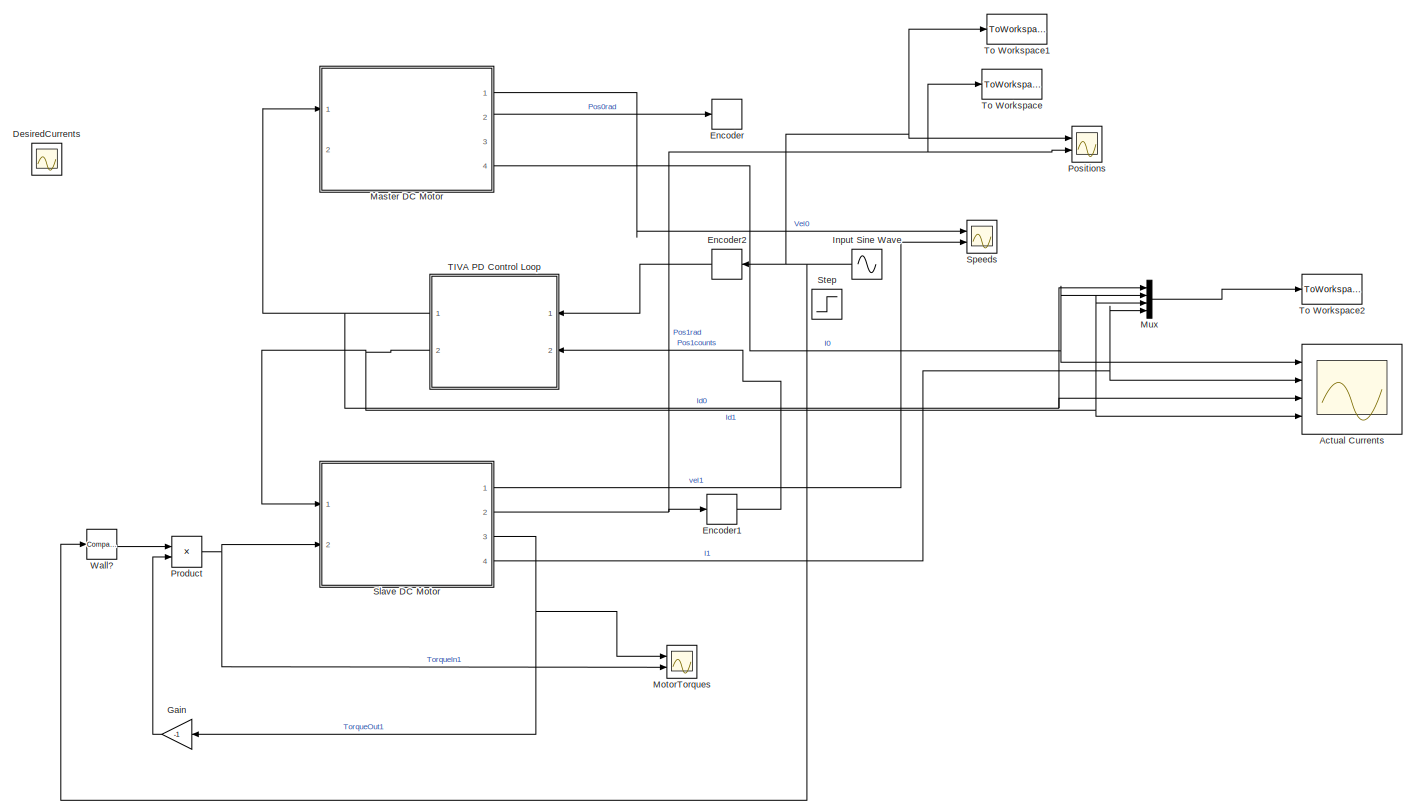
[diagram: root canvas - part 1/1, most of the canvas]
MODEL slx_b3f14bf9bebd
KIND model
CONFIG AbsTol = auto
CONFIG EnableMultiTasking = off
CONFIG FixedStep = 0.00001
CONFIG MaxStep = auto
CONFIG MinStep = auto
CONFIG RelTol = 1e-3
CONFIG SampleTimeConstraint = Unconstrained
CONFIG Solver = VariableStepAuto
CONFIG SolverName = VariableStepAuto
CONFIG StartTime = 0.0
CONFIG StopTime = 10
BLOCK [Scope] Actual Currents
  NumInputPorts = 4
  Ports = [4]
  ScopeSpecificationString = Simulink.scopes.TimeScopeBlockCfg('CurrentConfiguration', extmgr.ConfigurationSet(extmgr.Configuration('Core','General UI',true),extmgr.Configuration('Core','Source UI',true),extmgr.Configuration('Sources','WiredSimulink',true,'DataLoggingVariableName','ScopeData2'),extmgr.Configuration('Visuals','Time Domain',true,'SerializedDisplays',{struct('MinYLimReal','-1.7497','MaxYLimReal','1.3431','YLabel...<+1403ch>
BLOCK [Scope] DesiredCurrents
  NumInputPorts = 1
  Ports = [1]
  ScopeSpecificationString = Simulink.scopes.TimeScopeBlockCfg('CurrentConfiguration', extmgr.ConfigurationSet(extmgr.Configuration('Core','General UI',true),extmgr.Configuration('Core','Source UI',true),extmgr.Configuration('Sources','WiredSimulink',true,'DataLoggingVariableName','ScopeData3'),extmgr.Configuration('Visuals','Time Domain',true),extmgr.Configuration('Tools','Plot Navigation',true),extmgr.Configuration('Tools',...<+40ch>
BLOCK [Quantizer] Encoder
  QuantizationInterval = (2*pi)/8192
BLOCK [Quantizer] Encoder1
  QuantizationInterval = (2*pi)/8192
BLOCK [Quantizer] Encoder2
  QuantizationInterval = (2*pi)/8192
BLOCK [Gain] Gain
  Gain = -1
  OutDataTypeStr = Inherit: Inherit via internal rule
  ParamDataTypeStr = Inherit: Inherit via internal rule
  SaturateOnIntegerOverflow = off
BLOCK [Sin] Input Sine Wave
  Ports = [0, 1]
  SampleTime = 0
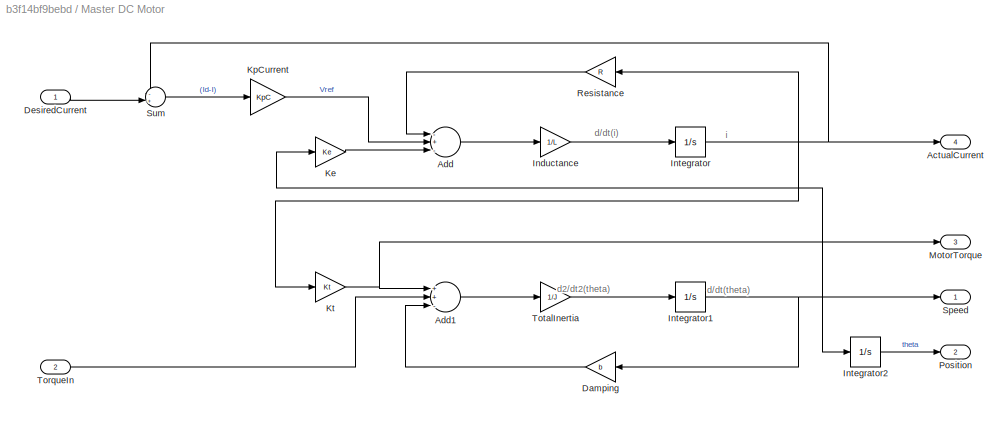
BLOCK [SubSystem] Master DC Motor
  Ports = [2, 4]
  RequestExecContextInheritance = off
  Variant = off
BLOCK [Outport] Master DC Motor/ActualCurrent
  IconDisplay = Port number
  Port = 4
BLOCK [Sum] Master DC Motor/Add
  InputSameDT = off
  Inputs = -+-
  OutDataTypeStr = Inherit: Inherit via internal rule
  Ports = [3, 1]
  SaturateOnIntegerOverflow = off
BLOCK [Sum] Master DC Motor/Add1
  InputSameDT = off
  Inputs = ++-
  OutDataTypeStr = Inherit: Inherit via internal rule
  Ports = [3, 1]
  SaturateOnIntegerOverflow = off
BLOCK [Gain] Master DC Motor/Damping
  Gain = b
  OutDataTypeStr = Inherit: Inherit via internal rule
  ParamDataTypeStr = Inherit: Inherit via internal rule
  SaturateOnIntegerOverflow = off
BLOCK [Inport] Master DC Motor/DesiredCurrent
  IconDisplay = Port number
BLOCK [Gain] Master DC Motor/Inductance
  Gain = 1/L
  OutDataTypeStr = Inherit: Inherit via internal rule
  ParamDataTypeStr = Inherit: Inherit via internal rule
  SaturateOnIntegerOverflow = off
BLOCK [Integrator] Master DC Motor/Integrator
  Ports = [1, 1]
BLOCK [Integrator] Master DC Motor/Integrator1
  Ports = [1, 1]
BLOCK [Integrator] Master DC Motor/Integrator2
  Ports = [1, 1]
BLOCK [Gain] Master DC Motor/Ke
  Gain = Ke
  OutDataTypeStr = Inherit: Inherit via internal rule
  ParamDataTypeStr = Inherit: Inherit via internal rule
  SaturateOnIntegerOverflow = off
BLOCK [Gain] Master DC Motor/KpCurrent
  Gain = KpC
  OutDataTypeStr = Inherit: Inherit via internal rule
  ParamDataTypeStr = Inherit: Inherit via internal rule
  SaturateOnIntegerOverflow = off
BLOCK [Gain] Master DC Motor/Kt
  Gain = Kt
  OutDataTypeStr = Inherit: Inherit via internal rule
  ParamDataTypeStr = Inherit: Inherit via internal rule
  SaturateOnIntegerOverflow = off
BLOCK [Outport] Master DC Motor/MotorTorque
  IconDisplay = Port number
  Port = 3
BLOCK [Outport] Master DC Motor/Position
  IconDisplay = Port number
  Port = 2
BLOCK [Gain] Master DC Motor/Resistance
  Gain = R
  OutDataTypeStr = Inherit: Inherit via internal rule
  ParamDataTypeStr = Inherit: Inherit via internal rule
  SaturateOnIntegerOverflow = off
BLOCK [Outport] Master DC Motor/Speed
  IconDisplay = Port number
BLOCK [Sum] Master DC Motor/Sum
  IconShape = round
  InputSameDT = off
  Inputs = -+|
  OutDataTypeStr = Inherit: Inherit via internal rule
  Ports = [2, 1]
  SaturateOnIntegerOverflow = off
BLOCK [Inport] Master DC Motor/TorqueIn
  IconDisplay = Port number
  Port = 2
BLOCK [Gain] Master DC Motor/TotalInertia
  Gain = 1/J
  OutDataTypeStr = Inherit: Inherit via internal rule
  ParamDataTypeStr = Inherit: Inherit via internal rule
  SaturateOnIntegerOverflow = off
BLOCK [Scope] MotorTorques
  NumInputPorts = 2
  Ports = [2]
  ScopeSpecificationString = Simulink.scopes.TimeScopeBlockCfg('CurrentConfiguration', extmgr.ConfigurationSet(extmgr.Configuration('Core','General UI',true),extmgr.Configuration('Core','Source UI',true),extmgr.Configuration('Sources','WiredSimulink',true,'DataLoggingVariableName','ScopeData4'),extmgr.Configuration('Visuals','Time Domain',true,'SerializedDisplays',{struct('MinYLimReal','-0.02503','MaxYLimReal','0.02507','YLab...<+1412ch>
BLOCK [Mux] Mux
  DisplayOption = bar
  Ports = [4, 1]
BLOCK [Scope] Positions
  NumInputPorts = 2
  Ports = [2]
  ScopeSpecificationString = Simulink.scopes.TimeScopeBlockCfg('CurrentConfiguration', extmgr.ConfigurationSet(extmgr.Configuration('Core','General UI',true),extmgr.Configuration('Core','Source UI',true),extmgr.Configuration('Sources','WiredSimulink',true),extmgr.Configuration('Visuals','Time Domain',true,'SerializedDisplays',{struct('MinYLimReal','-5.22724','MaxYLimReal','6.17646','YLabelReal','','MinYLimMag','0.00000','MaxY...<+1375ch>
BLOCK [Product] Product
  InputSameDT = off
  OutDataTypeStr = Inherit: Inherit via internal rule
  Ports = [2, 1]
  RndMeth = Floor
  SaturateOnIntegerOverflow = off
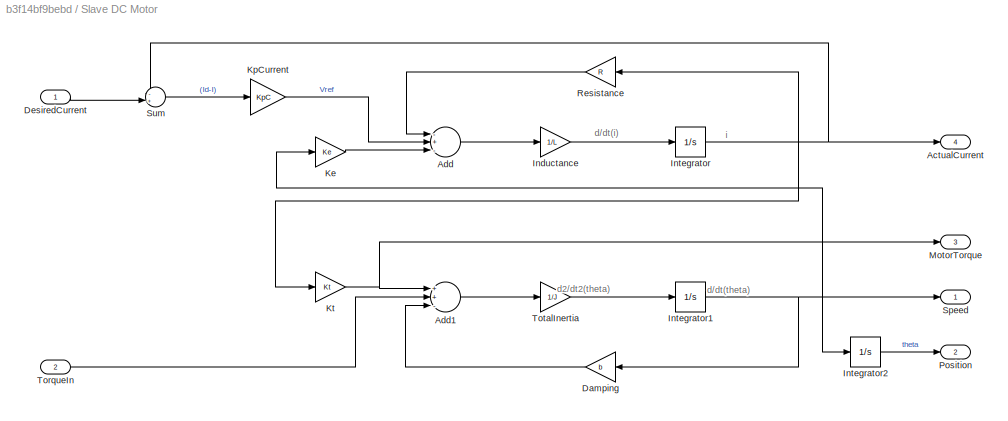
BLOCK [SubSystem] Slave DC Motor
  Ports = [2, 4]
  RequestExecContextInheritance = off
  Variant = off
BLOCK [Outport] Slave DC Motor/ActualCurrent
  IconDisplay = Port number
  Port = 4
BLOCK [Sum] Slave DC Motor/Add
  InputSameDT = off
  Inputs = -+-
  OutDataTypeStr = Inherit: Inherit via internal rule
  Ports = [3, 1]
  SaturateOnIntegerOverflow = off
BLOCK [Sum] Slave DC Motor/Add1
  InputSameDT = off
  Inputs = ++-
  OutDataTypeStr = Inherit: Inherit via internal rule
  Ports = [3, 1]
  SaturateOnIntegerOverflow = off
BLOCK [Gain] Slave DC Motor/Damping
  Gain = b
  OutDataTypeStr = Inherit: Inherit via internal rule
  ParamDataTypeStr = Inherit: Inherit via internal rule
  SaturateOnIntegerOverflow = off
BLOCK [Inport] Slave DC Motor/DesiredCurrent
  IconDisplay = Port number
BLOCK [Gain] Slave DC Motor/Inductance
  Gain = 1/L
  OutDataTypeStr = Inherit: Inherit via internal rule
  ParamDataTypeStr = Inherit: Inherit via internal rule
  SaturateOnIntegerOverflow = off
BLOCK [Integrator] Slave DC Motor/Integrator
  Ports = [1, 1]
BLOCK [Integrator] Slave DC Motor/Integrator1
  Ports = [1, 1]
BLOCK [Integrator] Slave DC Motor/Integrator2
  Ports = [1, 1]
BLOCK [Gain] Slave DC Motor/Ke
  Gain = Ke
  OutDataTypeStr = Inherit: Inherit via internal rule
  ParamDataTypeStr = Inherit: Inherit via internal rule
  SaturateOnIntegerOverflow = off
BLOCK [Gain] Slave DC Motor/KpCurrent
  Gain = KpC
  OutDataTypeStr = Inherit: Inherit via internal rule
  ParamDataTypeStr = Inherit: Inherit via internal rule
  SaturateOnIntegerOverflow = off
BLOCK [Gain] Slave DC Motor/Kt
  Gain = Kt
  OutDataTypeStr = Inherit: Inherit via internal rule
  ParamDataTypeStr = Inherit: Inherit via internal rule
  SaturateOnIntegerOverflow = off
BLOCK [Outport] Slave DC Motor/MotorTorque
  IconDisplay = Port number
  Port = 3
BLOCK [Outport] Slave DC Motor/Position
  IconDisplay = Port number
  Port = 2
BLOCK [Gain] Slave DC Motor/Resistance
  Gain = R
  OutDataTypeStr = Inherit: Inherit via internal rule
  ParamDataTypeStr = Inherit: Inherit via internal rule
  SaturateOnIntegerOverflow = off
BLOCK [Outport] Slave DC Motor/Speed
  IconDisplay = Port number
BLOCK [Sum] Slave DC Motor/Sum
  IconShape = round
  InputSameDT = off
  Inputs = -+|
  OutDataTypeStr = Inherit: Inherit via internal rule
  Ports = [2, 1]
  SaturateOnIntegerOverflow = off
BLOCK [Inport] Slave DC Motor/TorqueIn
  IconDisplay = Port number
  Port = 2
BLOCK [Gain] Slave DC Motor/TotalInertia
  Gain = 1/J
  OutDataTypeStr = Inherit: Inherit via internal rule
  ParamDataTypeStr = Inherit: Inherit via internal rule
  SaturateOnIntegerOverflow = off
BLOCK [Scope] Speeds
  NumInputPorts = 2
  Ports = [2]
  ScopeSpecificationString = Simulink.scopes.TimeScopeBlockCfg('CurrentConfiguration', extmgr.ConfigurationSet(extmgr.Configuration('Core','General UI',true),extmgr.Configuration('Core','Source UI',true),extmgr.Configuration('Sources','WiredSimulink',true,'DataLoggingVariableName','ScopeData1'),extmgr.Configuration('Visuals','Time Domain',true,'SerializedDisplays',{struct('MinYLimReal','-251.91405','MaxYLimReal','1323.66231',...<+1419ch>
BLOCK [Step] Step
  SampleTime = 0
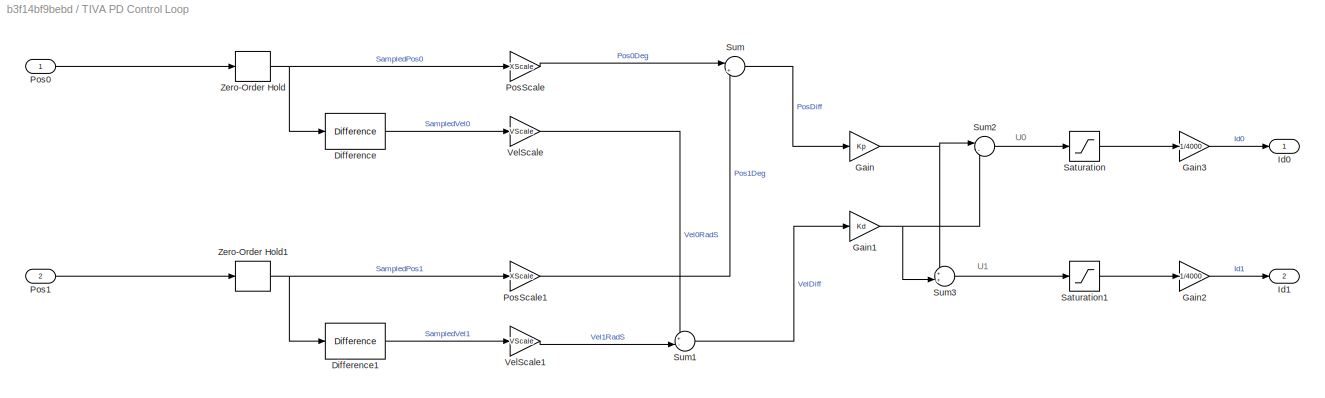
BLOCK [SubSystem] TIVA PD Control Loop
  Ports = [2, 2]
  RequestExecContextInheritance = off
  Variant = off
BLOCK [Reference] TIVA PD Control Loop/Difference  REF=simulink/Discrete/Difference
  Ports = [1, 1]
  SourceBlock = simulink/Discrete/Difference
  SourceProductBaseCode = SL
  SourceProductName = Simulink
  SourceType = Difference
BLOCK [Reference] TIVA PD Control Loop/Difference1  REF=simulink/Discrete/Difference
  Ports = [1, 1]
  SourceBlock = simulink/Discrete/Difference
  SourceProductBaseCode = SL
  SourceProductName = Simulink
  SourceType = Difference
BLOCK [Gain] TIVA PD Control Loop/Gain
  Gain = Kp
  OutDataTypeStr = Inherit: Inherit via internal rule
  ParamDataTypeStr = Inherit: Inherit via internal rule
  SaturateOnIntegerOverflow = off
BLOCK [Gain] TIVA PD Control Loop/Gain1
  Gain = Kd
  OutDataTypeStr = Inherit: Inherit via internal rule
  ParamDataTypeStr = Inherit: Inherit via internal rule
  SaturateOnIntegerOverflow = off
BLOCK [Gain] TIVA PD Control Loop/Gain2
  Gain = 1/4000
  OutDataTypeStr = Inherit: Inherit via internal rule
  ParamDataTypeStr = Inherit: Inherit via internal rule
  SaturateOnIntegerOverflow = off
BLOCK [Gain] TIVA PD Control Loop/Gain3
  Gain = 1/4000
  OutDataTypeStr = Inherit: Inherit via internal rule
  ParamDataTypeStr = Inherit: Inherit via internal rule
  SaturateOnIntegerOverflow = off
BLOCK [Outport] TIVA PD Control Loop/Id0
  IconDisplay = Port number
BLOCK [Outport] TIVA PD Control Loop/Id1
  IconDisplay = Port number
  Port = 2
BLOCK [Inport] TIVA PD Control Loop/Pos0
  IconDisplay = Port number
BLOCK [Inport] TIVA PD Control Loop/Pos1
  IconDisplay = Port number
  Port = 2
BLOCK [Gain] TIVA PD Control Loop/PosScale
  Gain = XScale
  OutDataTypeStr = Inherit: Inherit via internal rule
  ParamDataTypeStr = Inherit: Inherit via internal rule
  SaturateOnIntegerOverflow = off
BLOCK [Gain] TIVA PD Control Loop/PosScale1
  Gain = XScale
  OutDataTypeStr = Inherit: Inherit via internal rule
  ParamDataTypeStr = Inherit: Inherit via internal rule
  SaturateOnIntegerOverflow = off
BLOCK [Saturate] TIVA PD Control Loop/Saturation
  InputPortMap = u0
  LowerLimit = -4000
  Ports = [1, 1]
  UpperLimit = 4000
BLOCK [Saturate] TIVA PD Control Loop/Saturation1
  InputPortMap = u0
  LowerLimit = -4000
  Ports = [1, 1]
  UpperLimit = 4000
BLOCK [Sum] TIVA PD Control Loop/Sum
  IconShape = round
  InputSameDT = off
  Inputs = |+-
  OutDataTypeStr = Inherit: Inherit via internal rule
  Ports = [2, 1]
  SaturateOnIntegerOverflow = off
BLOCK [Sum] TIVA PD Control Loop/Sum1
  IconShape = round
  InputSameDT = off
  Inputs = +-|
  OutDataTypeStr = Inherit: Inherit via internal rule
  Ports = [2, 1]
  SaturateOnIntegerOverflow = off
BLOCK [Sum] TIVA PD Control Loop/Sum2
  IconShape = round
  InputSameDT = off
  Inputs = |--
  OutDataTypeStr = Inherit: Inherit via internal rule
  Ports = [2, 1]
  SaturateOnIntegerOverflow = off
BLOCK [Sum] TIVA PD Control Loop/Sum3
  IconShape = round
  InputSameDT = off
  Inputs = ++|
  OutDataTypeStr = Inherit: Inherit via internal rule
  Ports = [2, 1]
  SaturateOnIntegerOverflow = off
BLOCK [Gain] TIVA PD Control Loop/VelScale
  Gain = VScale
  OutDataTypeStr = Inherit: Inherit via internal rule
  ParamDataTypeStr = Inherit: Inherit via internal rule
  SaturateOnIntegerOverflow = off
BLOCK [Gain] TIVA PD Control Loop/VelScale1
  Gain = VScale
  OutDataTypeStr = Inherit: Inherit via internal rule
  ParamDataTypeStr = Inherit: Inherit via internal rule
  SaturateOnIntegerOverflow = off
BLOCK [ZeroOrderHold] TIVA PD Control Loop/Zero-Order Hold
  SampleTime = Tcontrol
BLOCK [ZeroOrderHold] TIVA PD Control Loop/Zero-Order Hold1
  SampleTime = Tcontrol
BLOCK [ToWorkspace] To Workspace
  FixptAsFi = on
  MaxDataPoints = inf
  Ports = [1]
  SampleTime = -1
  Save2DSignal = 3-D array (concatenate along third dimension)
  SaveFormat = Timeseries
  VariableName = pos1sim
BLOCK [ToWorkspace] To Workspace1
  FixptAsFi = on
  MaxDataPoints = inf
  Ports = [1]
  SampleTime = -1
  Save2DSignal = 3-D array (concatenate along third dimension)
  SaveFormat = Timeseries
  VariableName = pos0sim
BLOCK [ToWorkspace] To Workspace2
  FixptAsFi = on
  MaxDataPoints = inf
  Ports = [1]
  SampleTime = -1
  Save2DSignal = 3-D array (concatenate along third dimension)
  SaveFormat = Timeseries
  VariableName = currents_sim
BLOCK [Reference] Wall?  REF=simulink/Logic and Bit
Operations/Compare
To Constant
  Ports = [1, 1]
  SourceBlock = simulink/Logic and Bit\nOperations/Compare\nTo Constant
  SourceProductBaseCode = SL
  SourceProductName = Simulink
  SourceType = Compare To Constant
ANNOTATION Master DC Motor: d/dt(i)
ANNOTATION Master DC Motor: d/dt(theta)
ANNOTATION Master DC Motor: d2/dt2(theta)
ANNOTATION Master DC Motor: i
ANNOTATION Slave DC Motor: d/dt(i)
ANNOTATION Slave DC Motor: d/dt(theta)
ANNOTATION Slave DC Motor: d2/dt2(theta)
ANNOTATION Slave DC Motor: i
ANNOTATION TIVA PD Control Loop: U0
ANNOTATION TIVA PD Control Loop: U1
LINE Encoder1:1 -> TIVA PD Control Loop:2
LINE Encoder2:1 -> TIVA PD Control Loop:1
LINE Gain:1 -> Product:2
NET Input Sine Wave:1 -> Encoder2:1, Positions:1, To Workspace1:1, Wall?:1
LINE Master DC Motor/Add1:1 -> Master DC Motor/TotalInertia:1
LINE Master DC Motor/Add:1 -> Master DC Motor/Inductance:1
LINE Master DC Motor/Damping:1 -> Master DC Motor/Add1:3
LINE Master DC Motor/DesiredCurrent:1 -> Master DC Motor/Sum:2
LINE Master DC Motor/Inductance:1 -> Master DC Motor/Integrator:1
NET Master DC Motor/Integrator1:1 -> Master DC Motor/Damping:1, Master DC Motor/Integrator2:1, Master DC Motor/Ke:1, Master DC Motor/Speed:1
LINE Master DC Motor/Integrator2:1 -> Master DC Motor/Position:1
NET Master DC Motor/Integrator:1 -> Master DC Motor/ActualCurrent:1, Master DC Motor/Kt:1, Master DC Motor/Resistance:1, Master DC Motor/Sum:1
LINE Master DC Motor/Ke:1 -> Master DC Motor/Add:3
LINE Master DC Motor/KpCurrent:1 -> Master DC Motor/Add:2
NET Master DC Motor/Kt:1 -> Master DC Motor/Add1:1, Master DC Motor/MotorTorque:1
LINE Master DC Motor/Resistance:1 -> Master DC Motor/Add:1
LINE Master DC Motor/Sum:1 -> Master DC Motor/KpCurrent:1
LINE Master DC Motor/TorqueIn:1 -> Master DC Motor/Add1:2
LINE Master DC Motor/TotalInertia:1 -> Master DC Motor/Integrator1:1
LINE Master DC Motor:1 -> Speeds:1
LINE Master DC Motor:2 -> Encoder:1
NET Master DC Motor:4 -> Actual Currents:1, Mux:2
LINE Mux:1 -> To Workspace2:1
NET Product:1 -> MotorTorques:2, Slave DC Motor:2
LINE Slave DC Motor/Add1:1 -> Slave DC Motor/TotalInertia:1
LINE Slave DC Motor/Add:1 -> Slave DC Motor/Inductance:1
LINE Slave DC Motor/Damping:1 -> Slave DC Motor/Add1:3
LINE Slave DC Motor/DesiredCurrent:1 -> Slave DC Motor/Sum:2
LINE Slave DC Motor/Inductance:1 -> Slave DC Motor/Integrator:1
NET Slave DC Motor/Integrator1:1 -> Slave DC Motor/Damping:1, Slave DC Motor/Integrator2:1, Slave DC Motor/Ke:1, Slave DC Motor/Speed:1
LINE Slave DC Motor/Integrator2:1 -> Slave DC Motor/Position:1
NET Slave DC Motor/Integrator:1 -> Slave DC Motor/ActualCurrent:1, Slave DC Motor/Kt:1, Slave DC Motor/Resistance:1, Slave DC Motor/Sum:1
LINE Slave DC Motor/Ke:1 -> Slave DC Motor/Add:3
LINE Slave DC Motor/KpCurrent:1 -> Slave DC Motor/Add:2
NET Slave DC Motor/Kt:1 -> Slave DC Motor/Add1:1, Slave DC Motor/MotorTorque:1
LINE Slave DC Motor/Resistance:1 -> Slave DC Motor/Add:1
LINE Slave DC Motor/Sum:1 -> Slave DC Motor/KpCurrent:1
LINE Slave DC Motor/TorqueIn:1 -> Slave DC Motor/Add1:2
LINE Slave DC Motor/TotalInertia:1 -> Slave DC Motor/Integrator1:1
LINE Slave DC Motor:1 -> Speeds:2
NET Slave DC Motor:2 -> Encoder1:1, Positions:2, To Workspace:1
NET Slave DC Motor:3 -> Gain:1, MotorTorques:1
NET Slave DC Motor:4 -> Actual Currents:2, Mux:4
LINE TIVA PD Control Loop/Difference1:1 -> TIVA PD Control Loop/VelScale1:1
LINE TIVA PD Control Loop/Difference:1 -> TIVA PD Control Loop/VelScale:1
NET TIVA PD Control Loop/Gain1:1 -> TIVA PD Control Loop/Sum2:2, TIVA PD Control Loop/Sum3:2
LINE TIVA PD Control Loop/Gain2:1 -> TIVA PD Control Loop/Id1:1
LINE TIVA PD Control Loop/Gain3:1 -> TIVA PD Control Loop/Id0:1
NET TIVA PD Control Loop/Gain:1 -> TIVA PD Control Loop/Sum2:1, TIVA PD Control Loop/Sum3:1
LINE TIVA PD Control Loop/Pos0:1 -> TIVA PD Control Loop/Zero-Order Hold:1
LINE TIVA PD Control Loop/Pos1:1 -> TIVA PD Control Loop/Zero-Order Hold1:1
LINE TIVA PD Control Loop/PosScale1:1 -> TIVA PD Control Loop/Sum:2
LINE TIVA PD Control Loop/PosScale:1 -> TIVA PD Control Loop/Sum:1
LINE TIVA PD Control Loop/Saturation1:1 -> TIVA PD Control Loop/Gain2:1
LINE TIVA PD Control Loop/Saturation:1 -> TIVA PD Control Loop/Gain3:1
LINE TIVA PD Control Loop/Sum1:1 -> TIVA PD Control Loop/Gain1:1
LINE TIVA PD Control Loop/Sum2:1 -> TIVA PD Control Loop/Saturation:1
LINE TIVA PD Control Loop/Sum3:1 -> TIVA PD Control Loop/Saturation1:1
LINE TIVA PD Control Loop/Sum:1 -> TIVA PD Control Loop/Gain:1
LINE TIVA PD Control Loop/VelScale1:1 -> TIVA PD Control Loop/Sum1:2
LINE TIVA PD Control Loop/VelScale:1 -> TIVA PD Control Loop/Sum1:1
NET TIVA PD Control Loop/Zero-Order Hold1:1 -> TIVA PD Control Loop/Difference1:1, TIVA PD Control Loop/PosScale1:1
NET TIVA PD Control Loop/Zero-Order Hold:1 -> TIVA PD Control Loop/Difference:1, TIVA PD Control Loop/PosScale:1
NET TIVA PD Control Loop:1 -> Actual Currents:3, Master DC Motor:1, Mux:1
NET TIVA PD Control Loop:2 -> Actual Currents:4, Mux:3, Slave DC Motor:1
LINE Wall?:1 -> Product:1
note: NET lines group one-source signal fan-out (src -> all destinations, sorted); 1:1 wires keep LINE
